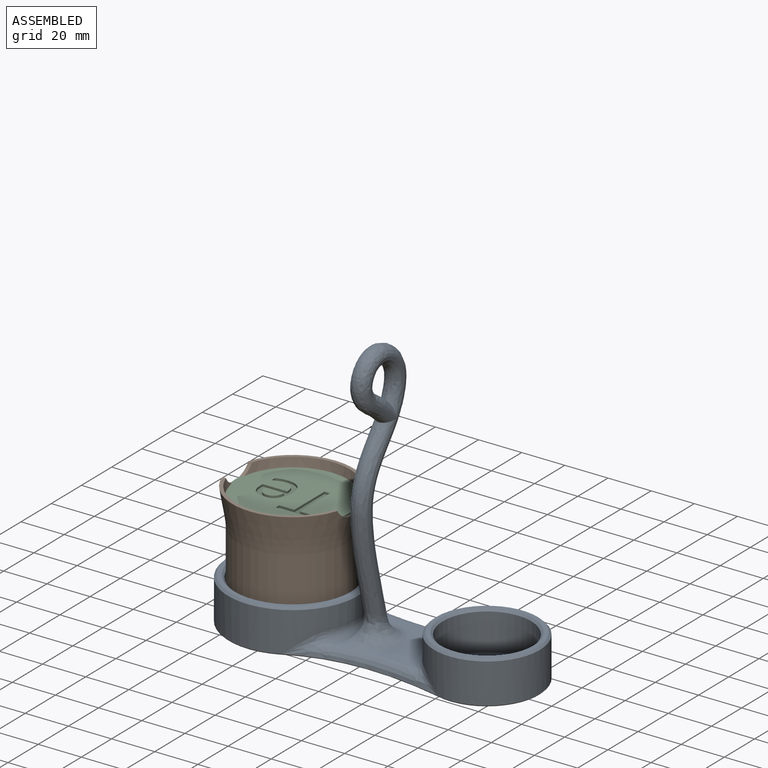
[diagram: assembled view]
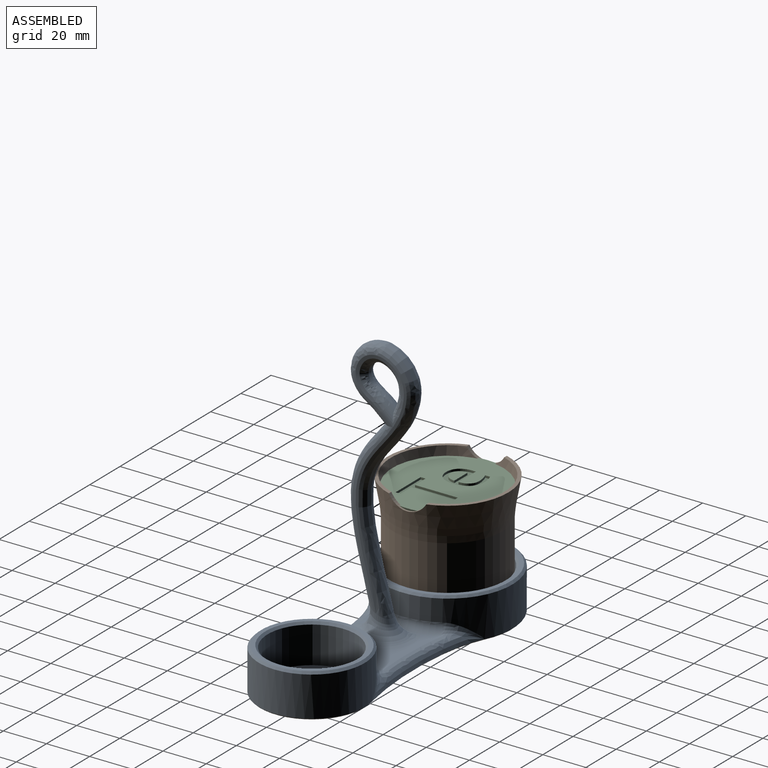
[diagram: assembled view, second angle]
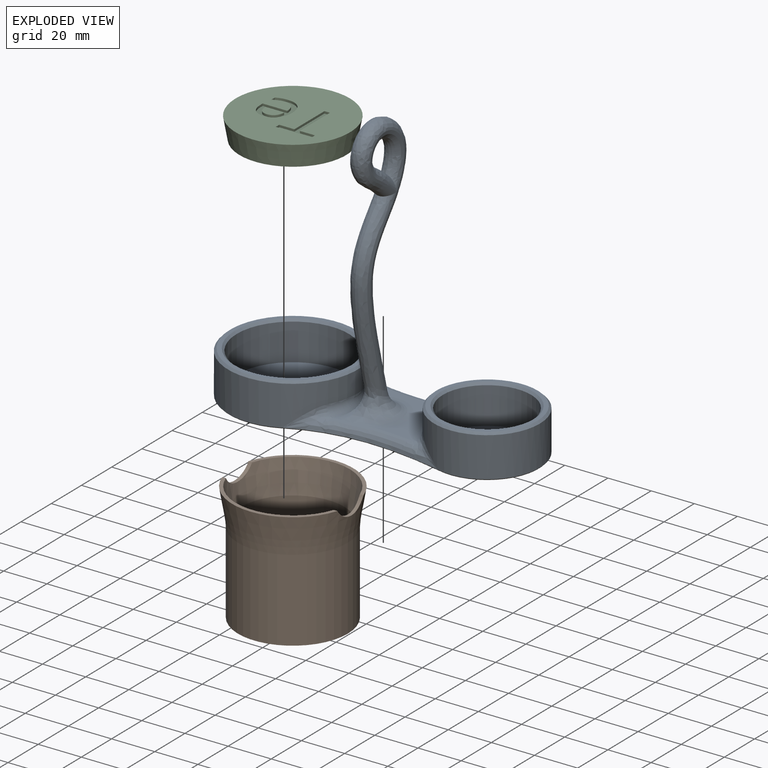
[diagram: exploded view]
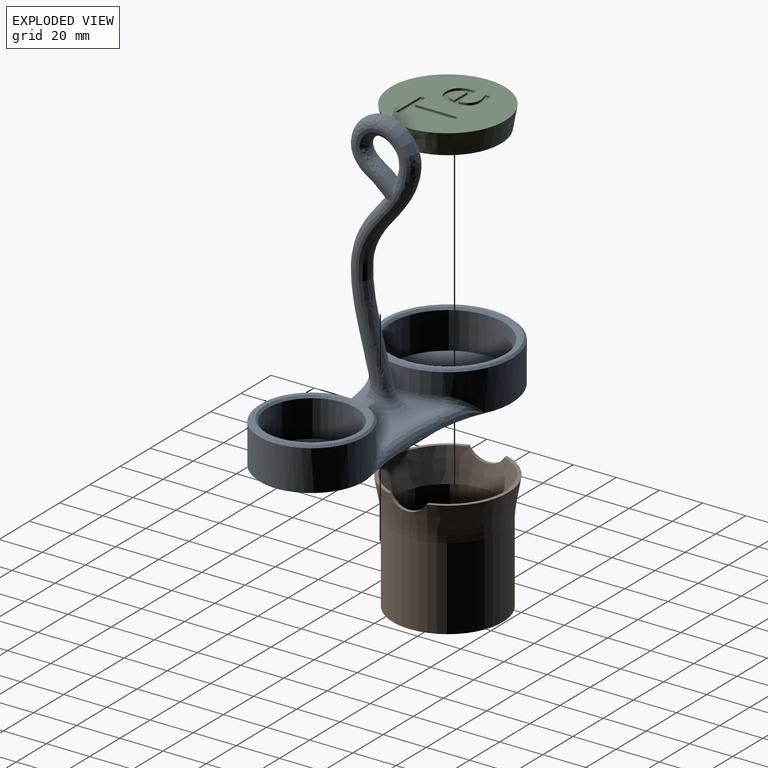
[diagram: exploded view, second angle]
ASSEMBLY  parts=3 mates=2
PART A: 37 faces, bbox 144.5x60x127.4 mm
  f0: bspline ~6.15x5.32mm, area 13.9mm2, adj f1,f13,f31,f33
  f1: bspline ~12.14x11.92mm, area 63mm2, adj f0,f13,f31,f35
  f2: plane 3.92x2.49mm, normal (0,0,1), area 4.1mm2, adj f16,f31,f35
  f3: cylinder r=30mm len=60mm, axis (0,0,-1), area 3062.5mm2, adj f5,f19,f25,f30,f31,f32
  f4: cylinder r=26mm len=52mm, axis (0,0,-1), area 2777.2mm2, adj f8,f23
  f5: extruded ~18.5x0.6mm, area 11.9mm2, adj f3,f18,f20,f25,f32
  f6: plane 58x58mm, normal (0,0,1), area 351.9mm2, adj f23,f25
  f7: plane 143.5x59mm, normal (0,0,-1), area 6281.4mm2, adj f18,f19,f20,f21,f22
  f8: plane 52x52mm, normal (0,0,1), area 2123.7mm2, adj f4
  f9: cylinder r=24.5mm len=49mm, axis (0,0,-1), area 2446.4mm2, adj f22,f26,f27,f28,f29
  f10: cylinder r=20.5mm len=41mm, axis (0,0,-1), area 2189.7mm2, adj f12,f24
  f11: plane 47x47mm, normal (0,0,1), area 282.7mm2, adj f24,f26
  f12: plane 41x41mm, normal (0,0,1), area 1320.3mm2, adj f10
  f13: bspline ~117.85x30.82mm, area 4115.2mm2, adj f0,f1,f14,f33,f34,f35,f36
  f14: cylinder r=4.25mm len=11.17mm, axis (0,0.76,-0.65), area 119.9mm2, adj f13
  f15: plane 37.76x33.33mm, normal (0,0,1), area 444.3mm2, adj f16,f17,f28,f31,f34
  f16: bspline ~83.61x13.47mm, area 380.6mm2, adj f2,f15,f20,f27,f32,f36
  f17: bspline ~76.01x10.95mm, area 387.2mm2, adj f15,f21,f29,f30
  f18: bspline ~0.83x0.75mm, area 0.5mm2, adj f5,f7,f19,f20
  f19: cone r=30mm half-angle=45deg, axis (0,0,1), area 85.7mm2, adj f3,f7,f18,f21,f30
  f20: bspline ~73.6x8.15mm, area 50.5mm2, adj f5,f7,f16,f18,f22,f27
  f21: bspline ~77.61x8.44mm, area 50.8mm2, adj f7,f17,f19,f22,f29,f30
  f22: cone r=24.5mm half-angle=45deg, axis (0,0,1), area 62.5mm2, adj f7,f9,f20,f21,f27,f29
  f23: cone r=26mm half-angle=45deg, axis (0,0,1), area 235.5mm2, adj f4,f6
  f24: cone r=20.5mm half-angle=45deg, axis (0,0,1), area 186.6mm2, adj f10,f11
  f25: cone r=29mm half-angle=45deg, axis (0,0,-1), area 262.1mm2, adj f3,f5,f6
  f26: cone r=23.5mm half-angle=45deg, axis (0,0,-1), area 213.3mm2, adj f9,f11
  f27: bspline ~17.93x10.75mm, area 61mm2, adj f9,f16,f20,f22,f28
  f28: torus R=28.5mm, axis (0,0,1), area 197.4mm2, adj f9,f15,f27,f29
  f29: bspline ~18.27x10.53mm, area 60.3mm2, adj f9,f17,f21,f22,f28
  f30: bspline ~16.64x12.9mm, area 59.2mm2, adj f3,f17,f19,f21,f31
  f31: torus R=34mm, axis (0,0,1), area 206.2mm2, adj f0,f1,f2,f3,f15,f30,f32,f33
  f32: bspline ~17.07x13.84mm, area 60.6mm2, adj f3,f5,f16,f31
  f33: bspline ~10.82x8.16mm, area 39mm2, adj f0,f13,f31,f34
  f34: bspline ~26.7x21.76mm, area 383.4mm2, adj f13,f15,f33,f36
  f35: bspline ~12.33x11.72mm, area 29.9mm2, adj f1,f2,f13,f36
  f36: bspline ~18.27x13.39mm, area 124.4mm2, adj f13,f16,f34,f35
PART B: 11 faces, bbox 86.4x86.4x71.1 mm
  f0: plane 53.35x19.38mm, normal (0,0,1), area 108.7mm2, adj f2,f3,f9,f10
  f1: plane 53.35x19.38mm, normal (0,0,1), area 108.7mm2, adj f2,f3,f9,f10
  f2: cone r=26.44mm half-angle=10deg, axis (0,0,1), area 2278mm2, adj f0,f1,f8,f9,f10
  f3: cone r=26.16mm half-angle=10deg, axis (0,0,1), area 1722.8mm2, adj f0,f1,f6,f9,f10
  f4: cylinder r=25.46mm len=50.92mm, axis (0,0,-1), area 6090.7mm2, adj f5,f6
  f5: plane 50.92x50.92mm, normal (0,0,-1), area 2036.4mm2, adj f4
  f6: torus R=75.4mm, axis (0,0,1), area 1015.3mm2, adj f3,f4
  f7: plane 47.6x47.6mm, normal (0,0,1), area 1779.5mm2, adj f8
  f8: cylinder r=23.8mm len=47.6mm, axis (0,0,-1), area 5799.2mm2, adj f2,f7
  f9: cylinder r=10mm len=17.32mm, axis (-1,0,0), area 34.2mm2, adj f0,f1,f2,f3
  f10: cylinder r=10mm len=17.32mm, axis (-1,0,0), area 34.2mm2, adj f0,f1,f2,f3
PART C: 33 faces, bbox 53x53x10 mm
  f0: plane 53.03x53.03mm, normal (0,0,-1), area 1974.5mm2, adj f1,f3,f4,f5,f6,f7,f8,f9
  f1: cone r=24.75mm half-angle=10deg, axis (0,0,-1), area 1635.3mm2, adj f0,f2
  f2: plane 49.5x49.5mm, normal (0,0,1), area 1924.4mm2, adj f1
  f3: extruded ~2.87x1mm, area 2.9mm2, adj f0,f4,f21,f22
  f4: extruded ~2.52x1mm, area 2.7mm2, adj f0,f3,f5,f22
  f5: plane 2.25x1mm, normal (-1,0,0), area 2.2mm2, adj f0,f4,f6,f22
  f6: extruded ~5.3x1.12mm, area 5.5mm2, adj f0,f5,f7,f22
  f7: extruded ~3.95x1.52mm, area 4.4mm2, adj f0,f6,f8,f22
  f8: extruded ~4.44x1.48mm, area 4.8mm2, adj f0,f7,f9,f22
  f9: plane 11.45x1mm, normal (0,-1,0), area 11.4mm2, adj f0,f8,f10,f22
  f10: plane 1.59x1mm, normal (-1,0,0), area 1.6mm2, adj f0,f9,f11,f22
  f11: extruded ~5.42x1.82mm, area 5.9mm2, adj f0,f10,f12,f22
  f12: extruded ~4.94x2.06mm, area 5.5mm2, adj f0,f11,f13,f22
  f13: extruded ~5.32x2.37mm, area 6mm2, adj f0,f12,f14,f22
  f14: extruded ~6.39x1.98mm, area 6.8mm2, adj f0,f13,f15,f22
  f15: extruded ~6.23x2.13mm, area 6.8mm2, adj f0,f14,f21,f22
  f16: extruded ~3.04x1.27mm, area 3.4mm2, adj f17,f20,f22,f23
  f17: extruded ~3.64x1.06mm, area 3.9mm2, adj f16,f18,f22,f23
  f18: plane 8.69x1mm, normal (0,1,0), area 8.7mm2, adj f17,f19,f22,f23
  f19: extruded ~3.61x1.41mm, area 3.9mm2, adj f18,f20,f22,f23
  f20: extruded ~3.19x1.3mm, area 3.6mm2, adj f16,f19,f22,f23
  f21: extruded ~5.82x2.25mm, area 6.4mm2, adj f0,f3,f15,f22
  f22: plane 17.23x14.06mm, normal (0,0,-1), area 110.2mm2, adj f3,f4,f5,f6,f7,f8,f9,f10
  f23: plane 8.69x4.91mm, normal (0,0,-1), area 34.4mm2, adj f16,f17,f18,f19,f20
  f24: plane 19.88x1mm, normal (-1,0,0), area 19.9mm2, adj f0,f25,f31,f32
  f25: plane 7.02x1mm, normal (0,-1,0), area 7mm2, adj f0,f24,f26,f32
  f26: plane 2.29x1mm, normal (-1,0,0), area 2.3mm2, adj f0,f25,f27,f32
  f27: plane 16.62x1mm, normal (0,1,0), area 16.6mm2, adj f0,f26,f28,f32
  f28: plane 2.29x1mm, normal (1,0,0), area 2.3mm2, adj f0,f27,f29,f32
  f29: plane 7.02x1mm, normal (0,-1,0), area 7mm2, adj f0,f28,f30,f32
  f30: plane 19.88x1mm, normal (1,0,0), area 19.9mm2, adj f0,f29,f31,f32
  f31: plane 2.58x1mm, normal (0,-1,0), area 2.6mm2, adj f0,f24,f30,f32
  f32: plane 22.17x16.62mm, normal (0,0,-1), area 89.3mm2, adj f24,f25,f26,f27,f28,f29,f30,f31
PLACE A at identity
PLACE B t=(-40,0,2)mm
PLACE C rot(axis=(0,1,0),180deg) t=(-40,0,42.9)mm
MATE slider C.f1 <-> B.f2  axis (0,0,-1) through (-40,0,42.9)mm
MATE planar B.f2 <-> A.f4  axis (0,0,-1) through (-40,0,2)mm
